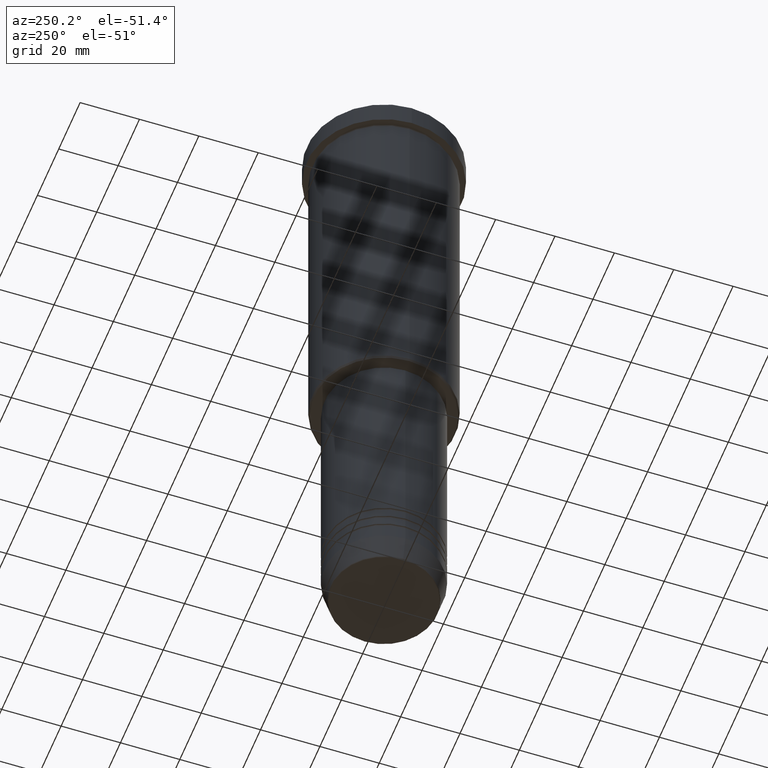
[diagram: clean part render]
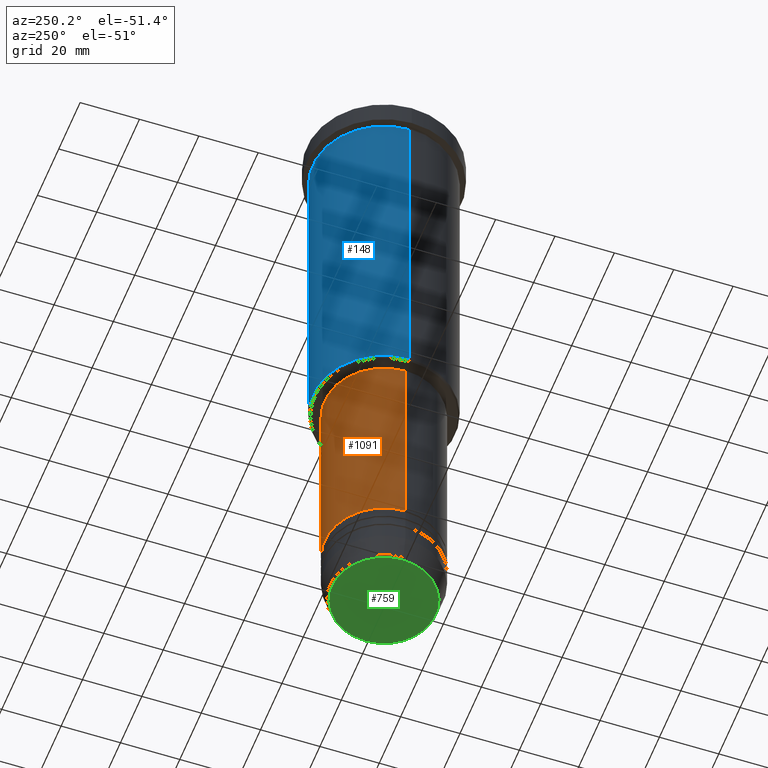
[diagram: same view with three faces highlighted in distinct colors, each labeled with its STEP entity id]
A machine part, auxiliary view with three faces highlighted in distinct colors.
Their STEP definitions:

[orange] entity #1091 — the highlighted cylindrical surface (partial cylindrical patch) has radius 20 mm, axis along (-0, -0, 1).
#61 = VERTEX_POINT ( 'NONE', #629 ) ;
#88 = CARTESIAN_POINT ( 'NONE',  ( 20.00000000000000355, 0.000000000000000000, 0.000000000000000000 ) ) ;
#93 = CARTESIAN_POINT ( 'NONE',  ( -20.00000000000000355, 2.449293598294706907E-15, -197.9999999999999716 ) ) ;
#117 = DIRECTION ( 'NONE',  ( 1.000000000000000000, 0.000000000000000000, 0.000000000000000000 ) ) ;
#135 = LINE ( 'NONE', #790, #466 ) ;
#260 = CIRCLE ( 'NONE', #928, 20.00000000000000355 ) ;
#288 = VERTEX_POINT ( 'NONE', #846 ) ;
#305 = DIRECTION ( 'NONE',  ( -0.000000000000000000, -0.000000000000000000, 1.000000000000000000 ) ) ;
#330 = EDGE_CURVE ( 'NONE', #542, #288, #135, .T. ) ;
#377 = DIRECTION ( 'NONE',  ( 1.000000000000000000, 0.000000000000000000, 0.000000000000000000 ) ) ;
#449 = AXIS2_PLACEMENT_3D ( 'NONE', #603, #626, #997 ) ;
#466 = VECTOR ( 'NONE', #968, 1000.000000000000000 ) ;
#468 = CIRCLE ( 'NONE', #449, 20.00000000000000355 ) ;
#529 = EDGE_CURVE ( 'NONE', #61, #835, #910, .T. ) ;
#542 = VERTEX_POINT ( 'NONE', #93 ) ;
#603 = CARTESIAN_POINT ( 'NONE',  ( 0.000000000000000000, 0.000000000000000000, -197.9999999999999716 ) ) ;
#626 = DIRECTION ( 'NONE',  ( -0.000000000000000000, -0.000000000000000000, 1.000000000000000000 ) ) ;
#629 = CARTESIAN_POINT ( 'NONE',  ( 20.00000000000000355, 0.000000000000000000, -197.9999999999999716 ) ) ;
#656 = DIRECTION ( 'NONE',  ( -0.000000000000000000, -0.000000000000000000, 1.000000000000000000 ) ) ;
#762 = ORIENTED_EDGE ( 'NONE', *, *, #879, .T. ) ;
#790 = CARTESIAN_POINT ( 'NONE',  ( -20.00000000000000355, 2.449293598294706907E-15, 0.000000000000000000 ) ) ;
#791 = VECTOR ( 'NONE', #1090, 1000.000000000000000 ) ;
#793 = ORIENTED_EDGE ( 'NONE', *, *, #330, .T. ) ;
#835 = VERTEX_POINT ( 'NONE', #979 ) ;
#846 = CARTESIAN_POINT ( 'NONE',  ( -20.00000000000000355, 2.449293598294706907E-15, -127.0000000000000000 ) ) ;
#879 = EDGE_CURVE ( 'NONE', #61, #542, #468, .T. ) ;
#906 = ORIENTED_EDGE ( 'NONE', *, *, #956, .F. ) ;
#910 = LINE ( 'NONE', #88, #791 ) ;
#928 = AXIS2_PLACEMENT_3D ( 'NONE', #1111, #656, #377 ) ;
#956 = EDGE_CURVE ( 'NONE', #835, #288, #260, .T. ) ;
#968 = DIRECTION ( 'NONE',  ( -0.000000000000000000, -0.000000000000000000, 1.000000000000000000 ) ) ;
#979 = CARTESIAN_POINT ( 'NONE',  ( 20.00000000000000355, 0.000000000000000000, -127.0000000000000000 ) ) ;
#997 = DIRECTION ( 'NONE',  ( 1.000000000000000000, 0.000000000000000000, 0.000000000000000000 ) ) ;
#1004 = AXIS2_PLACEMENT_3D ( 'NONE', #1031, #305, #117 ) ;
#1018 = CYLINDRICAL_SURFACE ( 'NONE', #1004, 20.00000000000000355 ) ;
#1031 = CARTESIAN_POINT ( 'NONE',  ( 0.000000000000000000, 0.000000000000000000, 0.000000000000000000 ) ) ;
#1090 = DIRECTION ( 'NONE',  ( -0.000000000000000000, -0.000000000000000000, 1.000000000000000000 ) ) ;
#1091 = ADVANCED_FACE ( 'NONE', ( #1142 ), #1018, .T. ) ;
#1111 = CARTESIAN_POINT ( 'NONE',  ( 0.000000000000000000, 0.000000000000000000, -127.0000000000000000 ) ) ;
#1141 = ORIENTED_EDGE ( 'NONE', *, *, #529, .F. ) ;
#1142 = FACE_OUTER_BOUND ( 'NONE', #1163, .T. ) ;
#1163 = EDGE_LOOP ( 'NONE', ( #762, #793, #906, #1141 ) ) ;

[blue] entity #148 — the highlighted cylindrical surface (partial cylindrical patch) has radius 24 mm, axis along (-0, -0, 1).
#7 = DIRECTION ( 'NONE',  ( 1.000000000000000000, 0.000000000000000000, 0.000000000000000000 ) ) ;
#28 = ORIENTED_EDGE ( 'NONE', *, *, #63, .F. ) ;
#50 = LINE ( 'NONE', #615, #258 ) ;
#55 = VECTOR ( 'NONE', #171, 1000.000000000000000 ) ;
#60 = CARTESIAN_POINT ( 'NONE',  ( -24.00000000000000000, 2.939152317953647894E-15, -8.999999999999994671 ) ) ;
#63 = EDGE_CURVE ( 'NONE', #400, #344, #636, .T. ) ;
#140 = CIRCLE ( 'NONE', #1115, 24.00000000000000000 ) ;
#148 = ADVANCED_FACE ( 'NONE', ( #803 ), #1171, .T. ) ;
#171 = DIRECTION ( 'NONE',  ( -0.000000000000000000, -0.000000000000000000, 1.000000000000000000 ) ) ;
#175 = EDGE_LOOP ( 'NONE', ( #619, #348, #28, #785 ) ) ;
#183 = CARTESIAN_POINT ( 'NONE',  ( 0.000000000000000000, 0.000000000000000000, 0.000000000000000000 ) ) ;
#220 = AXIS2_PLACEMENT_3D ( 'NONE', #280, #999, #826 ) ;
#233 = DIRECTION ( 'NONE',  ( -1.000000000000000000, 0.000000000000000000, 0.000000000000000000 ) ) ;
#258 = VECTOR ( 'NONE', #1072, 1000.000000000000000 ) ;
#280 = CARTESIAN_POINT ( 'NONE',  ( 0.000000000000000000, 0.000000000000000000, -8.999999999999994671 ) ) ;
#331 = CARTESIAN_POINT ( 'NONE',  ( 24.00000000000000000, 0.000000000000000000, -8.999999999999994671 ) ) ;
#344 = VERTEX_POINT ( 'NONE', #60 ) ;
#348 = ORIENTED_EDGE ( 'NONE', *, *, #384, .T. ) ;
#384 = EDGE_CURVE ( 'NONE', #719, #344, #50, .T. ) ;
#400 = VERTEX_POINT ( 'NONE', #331 ) ;
#441 = LINE ( 'NONE', #1154, #55 ) ;
#461 = EDGE_CURVE ( 'NONE', #516, #719, #140, .T. ) ;
#516 = VERTEX_POINT ( 'NONE', #807 ) ;
#523 = AXIS2_PLACEMENT_3D ( 'NONE', #183, #716, #7 ) ;
#611 = DIRECTION ( 'NONE',  ( -0.000000000000000000, -0.000000000000000000, 1.000000000000000000 ) ) ;
#615 = CARTESIAN_POINT ( 'NONE',  ( -24.00000000000000000, 2.939152317953647894E-15, 0.000000000000000000 ) ) ;
#619 = ORIENTED_EDGE ( 'NONE', *, *, #461, .T. ) ;
#636 = CIRCLE ( 'NONE', #220, 24.00000000000000000 ) ;
#716 = DIRECTION ( 'NONE',  ( -0.000000000000000000, -0.000000000000000000, 1.000000000000000000 ) ) ;
#719 = VERTEX_POINT ( 'NONE', #858 ) ;
#785 = ORIENTED_EDGE ( 'NONE', *, *, #887, .F. ) ;
#803 = FACE_OUTER_BOUND ( 'NONE', #175, .T. ) ;
#807 = CARTESIAN_POINT ( 'NONE',  ( 24.00000000000000000, 0.000000000000000000, -125.5000000000000284 ) ) ;
#826 = DIRECTION ( 'NONE',  ( 1.000000000000000000, 0.000000000000000000, 0.000000000000000000 ) ) ;
#858 = CARTESIAN_POINT ( 'NONE',  ( -24.00000000000000000, 2.939152317953647894E-15, -125.5000000000000284 ) ) ;
#887 = EDGE_CURVE ( 'NONE', #516, #400, #441, .T. ) ;
#999 = DIRECTION ( 'NONE',  ( -0.000000000000000000, -0.000000000000000000, 1.000000000000000000 ) ) ;
#1072 = DIRECTION ( 'NONE',  ( -0.000000000000000000, -0.000000000000000000, 1.000000000000000000 ) ) ;
#1115 = AXIS2_PLACEMENT_3D ( 'NONE', #1160, #611, #233 ) ;
#1154 = CARTESIAN_POINT ( 'NONE',  ( 24.00000000000000000, 0.000000000000000000, 0.000000000000000000 ) ) ;
#1160 = CARTESIAN_POINT ( 'NONE',  ( 0.000000000000000000, 0.000000000000000000, -125.5000000000000284 ) ) ;
#1171 = CYLINDRICAL_SURFACE ( 'NONE', #523, 24.00000000000000000 ) ;

[green] entity #759 — the highlighted planar face has unit normal (0, -0, 1).
#17 = DIRECTION ( 'NONE',  ( 1.000000000000000000, 0.000000000000000000, 0.000000000000000000 ) ) ;
#80 = DIRECTION ( 'NONE',  ( 1.000000000000000000, 0.000000000000000000, 0.000000000000000000 ) ) ;
#111 = CARTESIAN_POINT ( 'NONE',  ( 17.47274296656154036, 0.000000000000000000, -219.9999999999999716 ) ) ;
#116 = DIRECTION ( 'NONE',  ( 0.000000000000000000, -0.000000000000000000, 1.000000000000000000 ) ) ;
#151 = ORIENTED_EDGE ( 'NONE', *, *, #985, .T. ) ;
#212 = CARTESIAN_POINT ( 'NONE',  ( -17.47274296656154036, 2.169366823916868503E-15, -219.9999999999999716 ) ) ;
#279 = CIRCLE ( 'NONE', #1063, 17.47274296656154036 ) ;
#291 = FACE_OUTER_BOUND ( 'NONE', #918, .T. ) ;
#299 = AXIS2_PLACEMENT_3D ( 'NONE', #1071, #337, #80 ) ;
#337 = DIRECTION ( 'NONE',  ( 0.000000000000000000, 0.000000000000000000, -1.000000000000000000 ) ) ;
#360 = CARTESIAN_POINT ( 'NONE',  ( 0.000000000000000000, 0.000000000000000000, -219.9999999999999716 ) ) ;
#454 = DIRECTION ( 'NONE',  ( 0.000000000000000000, 0.000000000000000000, -1.000000000000000000 ) ) ;
#475 = ORIENTED_EDGE ( 'NONE', *, *, #789, .T. ) ;
#665 = VERTEX_POINT ( 'NONE', #111 ) ;
#759 = ADVANCED_FACE ( 'NONE', ( #291 ), #1112, .F. ) ;
#789 = EDGE_CURVE ( 'NONE', #665, #1069, #1060, .T. ) ;
#844 = DIRECTION ( 'NONE',  ( 1.000000000000000000, 0.000000000000000000, 0.000000000000000000 ) ) ;
#918 = EDGE_LOOP ( 'NONE', ( #475, #151 ) ) ;
#985 = EDGE_CURVE ( 'NONE', #1069, #665, #279, .T. ) ;
#1030 = CARTESIAN_POINT ( 'NONE',  ( 0.000000000000000000, 0.000000000000000000, -219.9999999999999716 ) ) ;
#1060 = CIRCLE ( 'NONE', #299, 17.47274296656154036 ) ;
#1063 = AXIS2_PLACEMENT_3D ( 'NONE', #360, #454, #17 ) ;
#1069 = VERTEX_POINT ( 'NONE', #212 ) ;
#1071 = CARTESIAN_POINT ( 'NONE',  ( 0.000000000000000000, 0.000000000000000000, -219.9999999999999716 ) ) ;
#1112 = PLANE ( 'NONE',  #1118 ) ;
#1118 = AXIS2_PLACEMENT_3D ( 'NONE', #1030, #116, #844 ) ;